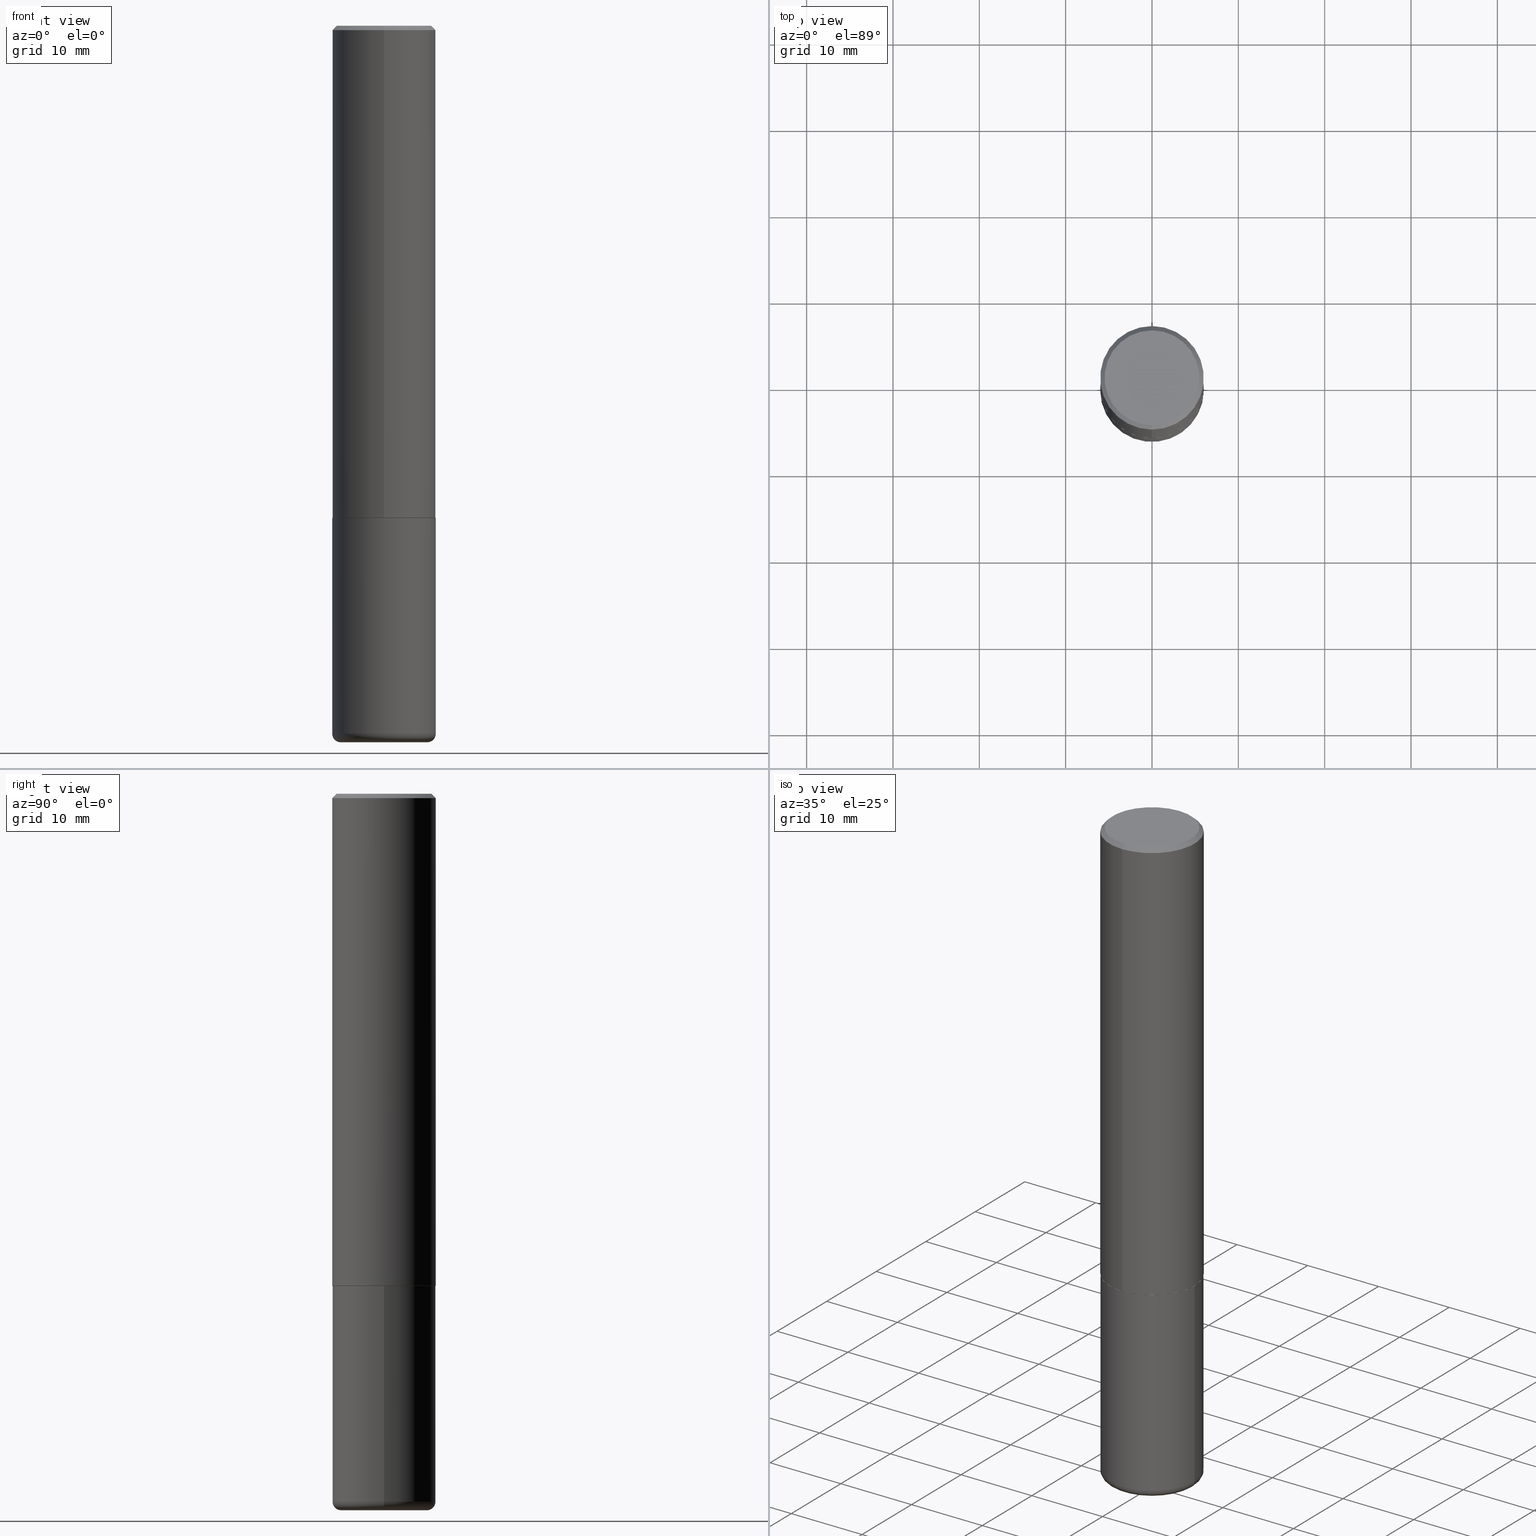
[diagram: canonical four-view strip — front | top / right | iso, engineering-drawing reading convention]
A machine part, canonical four-view strip (front | top / right | iso — engineering-drawing reading convention). The complete STEP part file that produces these views, byte-faithful:
ISO-10303-21;
HEADER;
FILE_DESCRIPTION (( 'STEP AP203' ),
    '1' );
FILE_NAME ('47165.STEP',
    '2024-03-06T00:37:50',
    ( '' ),
    ( '' ),
    'SwSTEP 2.0',
    'SolidWorks 2023',
    '' );
FILE_SCHEMA (( 'CONFIG_CONTROL_DESIGN' ));
ENDSEC;

DATA;
#1 = EDGE_CURVE ( 'NONE', #215, #292, #14, .T. ) ;
#2 = CARTESIAN_POINT ( 'NONE',  ( 5.487876547960065873E-29, -7.835233272497903917E-15, -2.244100000000000428 ) ) ;
#3 = CONICAL_SURFACE ( 'NONE', #312, 0.2361999999999999933, 0.7853981633974463916 ) ;
#4 = LINE ( 'NONE', #36, #342 ) ;
#5 = DIRECTION ( 'NONE',  ( -2.445468806185136877E-29, 3.491481338843145188E-15, 1.000000000000000000 ) ) ;
#6 = EDGE_LOOP ( 'NONE', ( #85, #385 ) ) ;
#7 = CARTESIAN_POINT ( 'NONE',  ( 0.1968000000000000027, -1.264579626115598374E-14, -3.228299999999999947 ) ) ;
#8 = PRODUCT ( '47165', '47165', '', ( #195 ) ) ;
#9 = FACE_OUTER_BOUND ( 'NONE', #144, .T. ) ;
#10 = APPROVAL ( #400, 'UNSPECIFIED' ) ;
#11 = ORIENTED_EDGE ( 'NONE', *, *, #122, .T. ) ;
#12 = EDGE_LOOP ( 'NONE', ( #347, #116, #345, #42 ) ) ;
#13 = CARTESIAN_POINT ( 'NONE',  ( 1.649375784469496525E-15, 0.2361999999999999378, -0.02000000000000091288 ) ) ;
#14 = LINE ( 'NONE', #302, #70 ) ;
#15 = CARTESIAN_POINT ( 'NONE',  ( 4.886397103869442398E-31, -6.989464944289237832E-17, -0.02000000000000009062 ) ) ;
#16 = AXIS2_PLACEMENT_3D ( 'NONE', #193, #225, #405 ) ;
#17 = ORGANIZATION ( 'UNSPECIFIED', 'UNSPECIFIED', '' ) ;
#18 = DIRECTION ( 'NONE',  ( 6.982962677686265922E-15, 1.000000000000000000, -3.487819265831411744E-15 ) ) ;
#19 = ORIENTED_EDGE ( 'NONE', *, *, #210, .T. ) ;
#20 = EDGE_CURVE ( 'NONE', #151, #363, #359, .T. ) ;
#21 = ORIENTED_EDGE ( 'NONE', *, *, #358, .F. ) ;
#22 = AXIS2_PLACEMENT_3D ( 'NONE', #30, #266, #100 ) ;
#23 = CARTESIAN_POINT ( 'NONE',  ( 7.178715118017931868E-45, -1.026837905226585320E-30, -2.938244667971532280E-16 ) ) ;
#24 = ORIENTED_EDGE ( 'NONE', *, *, #261, .T. ) ;
#25 = APPROVAL_ROLE ( '' ) ;
#26 = ADVANCED_BREP_SHAPE_REPRESENTATION ( '47165', ( #326, #200, #82 ), #274 ) ;
#27 = ORIENTED_EDGE ( 'NONE', *, *, #165, .F. ) ;
#28 = EDGE_CURVE ( 'NONE', #363, #151, #164, .T. ) ;
#29 = DIRECTION ( 'NONE',  ( -6.982962677686265922E-15, -1.000000000000000000, 3.494732472144603016E-15 ) ) ;
#30 = CARTESIAN_POINT ( 'NONE',  ( 0.000000000000000000, 0.000000000000000000, 0.000000000000000000 ) ) ;
#31 = AXIS2_PLACEMENT_3D ( 'NONE', #7, #281, #249 ) ;
#32 = ADVANCED_FACE ( 'NONE', ( #9 ), #182, .F. ) ;
#33 = DIRECTION ( 'NONE',  ( 1.000000000000000000, -6.982962677686261977E-15, 0.000000000000000000 ) ) ;
#34 = CONICAL_SURFACE ( 'NONE', #403, 0.2361999999999999933, 0.7853981633974463916 ) ;
#35 = CC_DESIGN_SECURITY_CLASSIFICATION ( #268, ( #333 ) ) ;
#36 = CARTESIAN_POINT ( 'NONE',  ( 1.671196514507810409E-15, 0.2351999999999921653, -2.244100000000000872 ) ) ;
#37 = EDGE_CURVE ( 'NONE', #138, #151, #50, .T. ) ;
#38 = FACE_OUTER_BOUND ( 'NONE', #410, .T. ) ;
#39 = DIRECTION ( 'NONE',  ( -1.000000000000000000, 7.105427357601014480E-15, 0.000000000000000000 ) ) ;
#40 = ORIENTED_EDGE ( 'NONE', *, *, #44, .T. ) ;
#41 = LOCAL_TIME ( 19, 37, 50.00000000000000000, #99 ) ;
#42 = ORIENTED_EDGE ( 'NONE', *, *, #28, .T. ) ;
#43 = DIRECTION ( 'NONE',  ( -6.982962677686265922E-15, -1.000000000000000000, 3.494732472144603410E-15 ) ) ;
#44 = EDGE_CURVE ( 'NONE', #292, #48, #120, .T. ) ;
#45 = PERSON ( 'UNSPECIFIED', 'UNSPECIFIED', 'UNSPECIFIED', ('UNSPECIFIED'), ('UNSPECIFIED'), ('UNSPECIFIED') ) ;
#46 =( LENGTH_UNIT ( ) NAMED_UNIT ( * ) SI_UNIT ( $, .METRE. ) );
#47 = ORIENTED_EDGE ( 'NONE', *, *, #37, .T. ) ;
#48 = VERTEX_POINT ( 'NONE', #275 ) ;
#49 = DATE_AND_TIME ( #336, #370 ) ;
#50 = LINE ( 'NONE', #185, #250 ) ;
#51 = AXIS2_PLACEMENT_3D ( 'NONE', #69, #241, #273 ) ;
#52 = ORIENTED_EDGE ( 'NONE', *, *, #261, .F. ) ;
#53 = AXIS2_PLACEMENT_3D ( 'NONE', #174, #243, #245 ) ;
#54 = PERSON_AND_ORGANIZATION ( #45, #17 ) ;
#55 = CARTESIAN_POINT ( 'NONE',  ( -0.2362000000000001321, -9.593247264321970832E-15, -3.228299999999999947 ) ) ;
#56 = EDGE_LOOP ( 'NONE', ( #19, #263 ) ) ;
#57 = EDGE_CURVE ( 'NONE', #138, #303, #328, .T. ) ;
#58 = CARTESIAN_POINT ( 'NONE',  ( 1.678301941865357380E-15, 0.2362000000000001321, -8.254558099205557624E-16 ) ) ;
#59 = CARTESIAN_POINT ( 'NONE',  ( 4.886397103869442398E-31, -6.989464944289237832E-17, -0.02000000000000009062 ) ) ;
#60 = PERSON_AND_ORGANIZATION ( #45, #17 ) ;
#61 = APPROVAL_PERSON_ORGANIZATION ( #60, #170, #25 ) ;
#62 = ADVANCED_FACE ( 'NONE', ( #84 ), #375, .T. ) ;
#63 = APPROVAL_STATUS ( 'not_yet_approved' ) ;
#64 = CARTESIAN_POINT ( 'NONE',  ( 0.2362000000000001321, -1.292092499065682533E-14, -3.228299999999999947 ) ) ;
#65 = VECTOR ( 'NONE', #262, 39.37007874015748143 ) ;
#66 = APPROVAL_DATE_TIME ( #355, #10 ) ;
#67 = PRODUCT_DEFINITION_SHAPE ( 'NONE', 'NONE',  #141 ) ;
#68 = APPROVAL_DATE_TIME ( #202, #291 ) ;
#69 = CARTESIAN_POINT ( 'NONE',  ( 5.480338671844748839E-29, -7.839034408267561952E-15, -2.243100000000000094 ) ) ;
#70 = VECTOR ( 'NONE', #5, 39.37007874015748143 ) ;
#71 = DIRECTION ( 'NONE',  ( 1.000000000000000000, -6.982962677686265922E-15, 0.000000000000000000 ) ) ;
#72 = LINE ( 'NONE', #73, #382 ) ;
#73 = CARTESIAN_POINT ( 'NONE',  ( 1.649375784469496525E-15, 0.2361999999999999378, -0.02000000000000091288 ) ) ;
#74 = DIRECTION ( 'NONE',  ( 1.000000000000000000, -6.982962677686268288E-15, 0.000000000000000000 ) ) ;
#75 = AXIS2_PLACEMENT_3D ( 'NONE', #114, #367, #344 ) ;
#76 = ORIENTED_EDGE ( 'NONE', *, *, #338, .T. ) ;
#77 = DIRECTION ( 'NONE',  ( 1.000000000000000000, -6.982962677686268288E-15, 0.000000000000000000 ) ) ;
#78 = COORDINATED_UNIVERSAL_TIME_OFFSET ( 5, 0, .BEHIND. ) ;
#79 = CARTESIAN_POINT ( 'NONE',  ( 7.894706947007477118E-29, -1.127154920618732880E-14, -3.228299999999999947 ) ) ;
#80 = ADVANCED_FACE ( 'NONE', ( #409 ), #357, .T. ) ;
#81 = CLOSED_SHELL ( 'NONE', ( #256, #354, #396, #96, #131, #319, #236, #265 ) ) ;
#82 = AXIS2_PLACEMENT_3D ( 'NONE', #152, #373, #285 ) ;
#83 = APPROVAL_ROLE ( '' ) ;
#84 = FACE_OUTER_BOUND ( 'NONE', #147, .T. ) ;
#85 = ORIENTED_EDGE ( 'NONE', *, *, #323, .F. ) ;
#86 = APPLICATION_PROTOCOL_DEFINITION ( 'international standard', 'config_control_design', 1994, #376 ) ;
#87 = CC_DESIGN_DATE_AND_TIME_ASSIGNMENT ( #366, #222, ( #141 ) ) ;
#88 = DIRECTION ( 'NONE',  ( -2.445468806185136597E-29, 3.491481338843145583E-15, 1.000000000000000000 ) ) ;
#89 = ORIENTED_EDGE ( 'NONE', *, *, #358, .T. ) ;
#90 = CLOSED_SHELL ( 'NONE', ( #62, #80, #32, #286, #379, #270 ) ) ;
#91 = DATE_TIME_ROLE ( 'classification_date' ) ;
#92 = CC_DESIGN_APPROVAL ( #170, ( #141 ) ) ;
#93 = CYLINDRICAL_SURFACE ( 'NONE', #206, 0.2362000000000001321 ) ;
#94 = VERTEX_POINT ( 'NONE', #320 ) ;
#95 = DIRECTION ( 'NONE',  ( -1.000000000000000000, 6.982962677686265922E-15, -4.876176775795935793E-29 ) ) ;
#96 = ADVANCED_FACE ( 'NONE', ( #156 ), #34, .T. ) ;
#97 = VECTOR ( 'NONE', #401, 39.37007874015748143 ) ;
#98 = CARTESIAN_POINT ( 'NONE',  ( 5.482781870396684000E-29, -7.842529140739704038E-15, -2.244100000000000428 ) ) ;
#99 = COORDINATED_UNIVERSAL_TIME_OFFSET ( 5, 0, .BEHIND. ) ;
#100 = DIRECTION ( 'NONE',  ( 1.000000000000000000, -6.982962677686266711E-15, 4.876176775795936353E-29 ) ) ;
#101 = EDGE_CURVE ( 'NONE', #157, #48, #161, .T. ) ;
#102 = DIRECTION ( 'NONE',  ( 2.438088387897960049E-29, -3.491481338843145188E-15, -1.000000000000000000 ) ) ;
#103 = DIRECTION ( 'NONE',  ( -6.982962677686265922E-15, -1.000000000000000000, 3.484499991918702719E-15 ) ) ;
#104 = CARTESIAN_POINT ( 'NONE',  ( 5.487876547960065873E-29, -7.835233272497903917E-15, -2.244100000000000428 ) ) ;
#105 = CARTESIAN_POINT ( 'NONE',  ( 5.482781870396684000E-29, -7.842529140739704038E-15, -2.244100000000000428 ) ) ;
#106 = CARTESIAN_POINT ( 'NONE',  ( 7.894706947007477118E-29, -1.127154920618732880E-14, -3.228299999999999947 ) ) ;
#107 = CARTESIAN_POINT ( 'NONE',  ( 5.487876547960065873E-29, -7.835233272497903917E-15, -2.244100000000000428 ) ) ;
#108 = CIRCLE ( 'NONE', #126, 0.2352000000000000202 ) ;
#109 = LOCAL_TIME ( 19, 37, 50.00000000000000000, #322 ) ;
#110 = FACE_OUTER_BOUND ( 'NONE', #371, .T. ) ;
#111 = APPLICATION_CONTEXT ( 'configuration controlled 3d designs of mechanical parts and assemblies' ) ;
#112 = ORIENTED_EDGE ( 'NONE', *, *, #327, .F. ) ;
#113 = PERSON_AND_ORGANIZATION_ROLE ( 'creator' ) ;
#114 = CARTESIAN_POINT ( 'NONE',  ( 5.482781870396684000E-29, -7.842529140739704038E-15, -2.244100000000000428 ) ) ;
#115 = DESIGN_CONTEXT ( 'detailed design', #111, 'design' ) ;
#116 = ORIENTED_EDGE ( 'NONE', *, *, #210, .F. ) ;
#117 = APPROVAL_STATUS ( 'not_yet_approved' ) ;
#118 = DIRECTION ( 'NONE',  ( -2.443198551934710321E-29, 3.494732472144603410E-15, 1.000000000000000000 ) ) ;
#119 = VERTEX_POINT ( 'NONE', #287 ) ;
#120 = CIRCLE ( 'NONE', #220, 0.2362000000000000210 ) ;
#121 = ORIENTED_EDGE ( 'NONE', *, *, #101, .T. ) ;
#122 = EDGE_CURVE ( 'NONE', #316, #138, #153, .T. ) ;
#123 = APPLICATION_PROTOCOL_DEFINITION ( 'international standard', 'config_control_design', 1994, #111 ) ;
#124 = DIRECTION ( 'NONE',  ( -2.443198551934710321E-29, 3.494732472144603410E-15, 1.000000000000000000 ) ) ;
#125 = VERTEX_POINT ( 'NONE', #378 ) ;
#126 = AXIS2_PLACEMENT_3D ( 'NONE', #389, #143, #103 ) ;
#127 = PERSON_AND_ORGANIZATION ( #45, #17 ) ;
#128 = AXIS2_PLACEMENT_3D ( 'NONE', #279, #298, #43 ) ;
#129 = DIRECTION ( 'NONE',  ( 6.982962677686265922E-15, 1.000000000000000000, -3.494732472144603016E-15 ) ) ;
#130 = CALENDAR_DATE ( 2024, 5, 3 ) ;
#131 = ADVANCED_FACE ( 'NONE', ( #223 ), #93, .T. ) ;
#132 = PLANE ( 'NONE',  #299 ) ;
#133 = CIRCLE ( 'NONE', #267, 0.2361999999999999655 ) ;
#134 = CARTESIAN_POINT ( 'NONE',  ( 1.656106381740712274E-29, -2.048112544989781332E-14, -3.267700000000000937 ) ) ;
#135 = ORIENTED_EDGE ( 'NONE', *, *, #391, .F. ) ;
#136 = LOCAL_TIME ( 19, 37, 50.00000000000000000, #234 ) ;
#137 = CARTESIAN_POINT ( 'NONE',  ( 5.482781870396684000E-29, -7.842529140739704038E-15, -2.244100000000000428 ) ) ;
#138 = VERTEX_POINT ( 'NONE', #231 ) ;
#139 = CARTESIAN_POINT ( 'NONE',  ( -1.620449627073635079E-15, -0.2362000000000000766, -0.01999999999999926489 ) ) ;
#140 = DIRECTION ( 'NONE',  ( -2.445468806185136597E-29, 3.491481338843145583E-15, 1.000000000000000000 ) ) ;
#141 = PRODUCT_DEFINITION ( 'UNKNOWN', '', #333, #115 ) ;
#142 = CIRCLE ( 'NONE', #53, 0.1968000000000000027 ) ;
#143 = DIRECTION ( 'NONE',  ( -2.443198551934710321E-29, 3.494732472144603410E-15, 1.000000000000000000 ) ) ;
#144 = EDGE_LOOP ( 'NONE', ( #89, #40 ) ) ;
#145 = CARTESIAN_POINT ( 'NONE',  ( -0.2362000000000000766, -7.875089297477259967E-15, -2.244100000000000428 ) ) ;
#146 = DIRECTION ( 'NONE',  ( -2.443198551934710321E-29, 3.494732472144603016E-15, 1.000000000000000000 ) ) ;
#147 = EDGE_LOOP ( 'NONE', ( #335, #148, #21, #307 ) ) ;
#148 = ORIENTED_EDGE ( 'NONE', *, *, #1, .T. ) ;
#149 = DIRECTION ( 'NONE',  ( 7.105427357601001859E-15, 1.000000000000000000, -3.491481338843145583E-15 ) ) ;
#150 = DIRECTION ( 'NONE',  ( 2.438088387897960049E-29, -3.491481338843145188E-15, -1.000000000000000000 ) ) ;
#151 = VERTEX_POINT ( 'NONE', #351 ) ;
#152 = CARTESIAN_POINT ( 'NONE',  ( 0.000000000000000000, 0.000000000000000000, 0.000000000000000000 ) ) ;
#153 = LINE ( 'NONE', #374, #97 ) ;
#154 = EDGE_LOOP ( 'NONE', ( #27, #283, #406, #197 ) ) ;
#155 = PERSON_AND_ORGANIZATION ( #45, #17 ) ;
#156 = FACE_OUTER_BOUND ( 'NONE', #12, .T. ) ;
#157 = VERTEX_POINT ( 'NONE', #64 ) ;
#158 = CC_DESIGN_PERSON_AND_ORGANIZATION_ASSIGNMENT ( #155, #407, ( #8 ) ) ;
#159 = AXIS2_PLACEMENT_3D ( 'NONE', #209, #387, #309 ) ;
#160 = DIRECTION ( 'NONE',  ( -2.443198551934710321E-29, 3.494732472144603016E-15, 1.000000000000000000 ) ) ;
#161 = LINE ( 'NONE', #255, #65 ) ;
#162 = EDGE_LOOP ( 'NONE', ( #226, #304, #121, #248 ) ) ;
#163 = CARTESIAN_POINT ( 'NONE',  ( 7.991058417971172834E-29, -1.140911357093774960E-14, -3.267700000000000937 ) ) ;
#164 = CIRCLE ( 'NONE', #289, 0.2361999999999999933 ) ;
#165 = EDGE_CURVE ( 'NONE', #119, #125, #240, .T. ) ;
#166 = CIRCLE ( 'NONE', #418, 0.03940000000000033753 ) ;
#167 = FACE_OUTER_BOUND ( 'NONE', #188, .T. ) ;
#168 = PERSON_AND_ORGANIZATION_ROLE ( 'creator' ) ;
#169 = PLANE ( 'NONE',  #356 ) ;
#170 = APPROVAL ( #117, 'UNSPECIFIED' ) ;
#171 = ORIENTED_EDGE ( 'NONE', *, *, #411, .F. ) ;
#172 = PERSON_AND_ORGANIZATION ( #45, #17 ) ;
#173 = AXIS2_PLACEMENT_3D ( 'NONE', #408, #124, #341 ) ;
#174 = CARTESIAN_POINT ( 'NONE',  ( 7.991058417971172834E-29, -1.140911357093774960E-14, -3.267700000000000937 ) ) ;
#175 = CYLINDRICAL_SURFACE ( 'NONE', #128, 0.2362000000000001321 ) ;
#176 = EDGE_CURVE ( 'NONE', #398, #316, #201, .T. ) ;
#177 = CARTESIAN_POINT ( 'NONE',  ( 4.886397103869442398E-31, -6.989464944289237832E-17, -0.02000000000000009062 ) ) ;
#178 = VECTOR ( 'NONE', #360, 39.37007874015748143 ) ;
#179 = VECTOR ( 'NONE', #160, 39.37007874015748143 ) ;
#180 = EDGE_LOOP ( 'NONE', ( #24, #191, #296, #171 ) ) ;
#181 = DIRECTION ( 'NONE',  ( 5.024295867788490741E-15, 0.7071067811866103003, 0.7071067811864847341 ) ) ;
#182 = PLANE ( 'NONE',  #228 ) ;
#183 = CC_DESIGN_PERSON_AND_ORGANIZATION_ASSIGNMENT ( #294, #325, ( #268 ) ) ;
#184 = EDGE_LOOP ( 'NONE', ( #343, #216, #11, #290 ) ) ;
#185 = CARTESIAN_POINT ( 'NONE',  ( -1.649375784469496920E-15, -0.2362000000000001321, 8.254558099205557624E-16 ) ) ;
#186 = AXIS2_PLACEMENT_3D ( 'NONE', #329, #212, #71 ) ;
#187 = LOCAL_TIME ( 19, 37, 50.00000000000000000, #315 ) ;
#188 = EDGE_LOOP ( 'NONE', ( #258, #284, #259, #196 ) ) ;
#189 = ORIENTED_EDGE ( 'NONE', *, *, #57, .T. ) ;
#190 = PRODUCT_RELATED_PRODUCT_CATEGORY ( 'detail', '', ( #8 ) ) ;
#191 = ORIENTED_EDGE ( 'NONE', *, *, #391, .T. ) ;
#192 = DIRECTION ( 'NONE',  ( -6.982962677686265922E-15, -1.000000000000000000, 3.469747663417773058E-15 ) ) ;
#193 = CARTESIAN_POINT ( 'NONE',  ( 0.000000000000000000, 0.000000000000000000, 0.000000000000000000 ) ) ;
#194 = AXIS2_PLACEMENT_3D ( 'NONE', #214, #280, #192 ) ;
#195 = MECHANICAL_CONTEXT ( 'NONE', #376, 'mechanical' ) ;
#196 = ORIENTED_EDGE ( 'NONE', *, *, #122, .F. ) ;
#197 = ORIENTED_EDGE ( 'NONE', *, *, #383, .F. ) ;
#198 = CARTESIAN_POINT ( 'NONE',  ( 1.509716530915772690E-15, 0.2162000000000002808, -9.024733938762408486E-16 ) ) ;
#199 = CC_DESIGN_PERSON_AND_ORGANIZATION_ASSIGNMENT ( #350, #168, ( #333 ) ) ;
#200 = MANIFOLD_SOLID_BREP ( 'Body-Move/Copy2[2]', #81 ) ;
#201 = CIRCLE ( 'NONE', #75, 0.2352000000000000202 ) ;
#202 = DATE_AND_TIME ( #293, #41 ) ;
#203 = APPROVAL_PERSON_ORGANIZATION ( #127, #291, #205 ) ;
#204 = EDGE_CURVE ( 'NONE', #303, #363, #219, .T. ) ;
#205 = APPROVAL_ROLE ( '' ) ;
#206 = AXIS2_PLACEMENT_3D ( 'NONE', #346, #118, #399 ) ;
#207 = CARTESIAN_POINT ( 'NONE',  ( -0.1968000000000000027, -9.873201102211451027E-15, -3.228299999999999947 ) ) ;
#208 = DIRECTION ( 'NONE',  ( -6.982962677686265922E-15, -1.000000000000000000, 3.484499991918702719E-15 ) ) ;
#209 = CARTESIAN_POINT ( 'NONE',  ( 4.886397103869442398E-31, -6.989464944289237832E-17, -0.02000000000000009062 ) ) ;
#210 = EDGE_CURVE ( 'NONE', #125, #119, #381, .T. ) ;
#211 = DIRECTION ( 'NONE',  ( -2.445468806185136597E-29, 3.491481338843145583E-15, 1.000000000000000000 ) ) ;
#212 = DIRECTION ( 'NONE',  ( -2.445468806185136597E-29, 3.491481338843145583E-15, 1.000000000000000000 ) ) ;
#213 = AXIS2_PLACEMENT_3D ( 'NONE', #163, #416, #33 ) ;
#214 = CARTESIAN_POINT ( 'NONE',  ( 5.480338671844748839E-29, -7.839034408267561952E-15, -2.243100000000000094 ) ) ;
#215 = VERTEX_POINT ( 'NONE', #55 ) ;
#216 = ORIENTED_EDGE ( 'NONE', *, *, #176, .T. ) ;
#217 = CARTESIAN_POINT ( 'NONE',  ( -0.1968000000000000027, -9.802006365641918959E-15, -3.267700000000000937 ) ) ;
#218 =( CONVERSION_BASED_UNIT ( 'INCH', #254 ) LENGTH_UNIT ( ) NAMED_UNIT ( #253 ) );
#219 = LINE ( 'NONE', #58, #179 ) ;
#220 = AXIS2_PLACEMENT_3D ( 'NONE', #107, #246, #74 ) ;
#221 = AXIS2_PLACEMENT_3D ( 'NONE', #297, #211, #362 ) ;
#222 = DATE_TIME_ROLE ( 'creation_date' ) ;
#223 = FACE_OUTER_BOUND ( 'NONE', #244, .T. ) ;
#224 = ORIENTED_EDGE ( 'NONE', *, *, #20, .F. ) ;
#225 = DIRECTION ( 'NONE',  ( -2.445468806185136597E-29, 3.491481338843145583E-15, 1.000000000000000000 ) ) ;
#226 = ORIENTED_EDGE ( 'NONE', *, *, #1, .F. ) ;
#227 =( NAMED_UNIT ( * ) PLANE_ANGLE_UNIT ( ) SI_UNIT ( $, .RADIAN. ) );
#228 = AXIS2_PLACEMENT_3D ( 'NONE', #104, #150, #393 ) ;
#229 = AXIS2_PLACEMENT_3D ( 'NONE', #2, #140, #77 ) ;
#230 = CALENDAR_DATE ( 2024, 5, 3 ) ;
#231 = CARTESIAN_POINT ( 'NONE',  ( -1.649375784469443080E-15, -0.2362000000000081257, -2.243099999999999206 ) ) ;
#232 = DATE_AND_TIME ( #130, #136 ) ;
#233 = FACE_OUTER_BOUND ( 'NONE', #56, .T. ) ;
#234 = COORDINATED_UNIVERSAL_TIME_OFFSET ( 5, 0, .BEHIND. ) ;
#235 = AXIS2_PLACEMENT_3D ( 'NONE', #23, #252, #369 ) ;
#236 = ADVANCED_FACE ( 'NONE', ( #260 ), #415, .F. ) ;
#237 = APPROVAL_PERSON_ORGANIZATION ( #54, #10, #83 ) ;
#238 = DIRECTION ( 'NONE',  ( -2.443198551934710321E-29, 3.494732472144603410E-15, 1.000000000000000000 ) ) ;
#239 = DIRECTION ( 'NONE',  ( -6.982962677686265922E-15, -1.000000000000000000, 3.484499991918702719E-15 ) ) ;
#240 = CIRCLE ( 'NONE', #235, 0.2162000000000002808 ) ;
#241 = DIRECTION ( 'NONE',  ( -2.443198551934710321E-29, 3.494732472144603410E-15, 1.000000000000000000 ) ) ;
#242 = ORIENTED_EDGE ( 'NONE', *, *, #365, .F. ) ;
#243 = DIRECTION ( 'NONE',  ( -2.445468806185136597E-29, 3.491481338843145583E-15, 1.000000000000000000 ) ) ;
#244 = EDGE_LOOP ( 'NONE', ( #288, #76, #47, #321 ) ) ;
#245 = DIRECTION ( 'NONE',  ( 1.000000000000000000, -6.982962677686261977E-15, 0.000000000000000000 ) ) ;
#246 = DIRECTION ( 'NONE',  ( -2.445468806185136597E-29, 3.491481338843145583E-15, 1.000000000000000000 ) ) ;
#247 = CC_DESIGN_DATE_AND_TIME_ASSIGNMENT ( #232, #91, ( #268 ) ) ;
#248 = ORIENTED_EDGE ( 'NONE', *, *, #44, .F. ) ;
#249 = DIRECTION ( 'NONE',  ( 1.000000000000000000, -6.982962677686268288E-15, 0.000000000000000000 ) ) ;
#250 = VECTOR ( 'NONE', #146, 39.37007874015748143 ) ;
#251 = CALENDAR_DATE ( 2024, 5, 3 ) ;
#252 = DIRECTION ( 'NONE',  ( -2.443198551934710321E-29, 3.494732472144603410E-15, 1.000000000000000000 ) ) ;
#253 = DIMENSIONAL_EXPONENTS ( 1.000000000000000000, 0.000000000000000000, 0.000000000000000000, 0.000000000000000000, 0.000000000000000000, 0.000000000000000000, 0.000000000000000000 ) ;
#254 = LENGTH_MEASURE_WITH_UNIT ( LENGTH_MEASURE( 0.02539999999999999897 ), #46 );
#255 = CARTESIAN_POINT ( 'NONE',  ( 0.2361999999999999933, -1.649375784469496131E-15, 1.151752954443000088E-29 ) ) ;
#256 = ADVANCED_FACE ( 'NONE', ( #167 ), #417, .T. ) ;
#257 = CC_DESIGN_APPROVAL ( #291, ( #268 ) ) ;
#258 = ORIENTED_EDGE ( 'NONE', *, *, #323, .T. ) ;
#259 = ORIENTED_EDGE ( 'NONE', *, *, #57, .F. ) ;
#260 = FACE_OUTER_BOUND ( 'NONE', #6, .T. ) ;
#261 = EDGE_CURVE ( 'NONE', #94, #390, #332, .T. ) ;
#262 = DIRECTION ( 'NONE',  ( -2.445468806185136877E-29, 3.491481338843145188E-15, 1.000000000000000000 ) ) ;
#263 = ORIENTED_EDGE ( 'NONE', *, *, #165, .T. ) ;
#264 = FACE_OUTER_BOUND ( 'NONE', #352, .T. ) ;
#265 = ADVANCED_FACE ( 'NONE', ( #233 ), #132, .F. ) ;
#266 = DIRECTION ( 'NONE',  ( -2.445468806185136597E-29, 3.491481338843145583E-15, 1.000000000000000000 ) ) ;
#267 = AXIS2_PLACEMENT_3D ( 'NONE', #106, #276, #361 ) ;
#268 = SECURITY_CLASSIFICATION ( '', '', #414 ) ;
#269 = DIRECTION ( 'NONE',  ( 2.443198551934710321E-29, -3.494732472144603016E-15, -1.000000000000000000 ) ) ;
#270 = ADVANCED_FACE ( 'NONE', ( #264 ), #169, .T. ) ;
#271 = CARTESIAN_POINT ( 'NONE',  ( 1.678301941865385582E-15, 0.2361999999999924160, -2.243100000000000982 ) ) ;
#272 = CONICAL_SURFACE ( 'NONE', #282, 0.2352000000000000202, 0.7853981633975336552 ) ;
#273 = DIRECTION ( 'NONE',  ( -6.982962677686265922E-15, -1.000000000000000000, 3.469747663417773058E-15 ) ) ;
#274 =( GEOMETRIC_REPRESENTATION_CONTEXT ( 3 ) GLOBAL_UNCERTAINTY_ASSIGNED_CONTEXT ( ( #324 ) ) GLOBAL_UNIT_ASSIGNED_CONTEXT ( ( #218, #227, #404 ) ) REPRESENTATION_CONTEXT ( 'NONE', 'WORKASPACE' ) );
#275 = CARTESIAN_POINT ( 'NONE',  ( 0.2362000000000000210, -9.484609056967400443E-15, -2.244100000000000428 ) ) ;
#276 = DIRECTION ( 'NONE',  ( -2.445468806185136597E-29, 3.491481338843145583E-15, 1.000000000000000000 ) ) ;
#277 = DIRECTION ( 'NONE',  ( -2.443198551934710321E-29, 3.494732472144603410E-15, 1.000000000000000000 ) ) ;
#278 = ORIENTED_EDGE ( 'NONE', *, *, #365, .T. ) ;
#279 = CARTESIAN_POINT ( 'NONE',  ( 0.000000000000000000, 0.000000000000000000, 0.000000000000000000 ) ) ;
#280 = DIRECTION ( 'NONE',  ( -2.443198551934710321E-29, 3.494732472144603410E-15, 1.000000000000000000 ) ) ;
#281 = DIRECTION ( 'NONE',  ( -6.982962677686266711E-15, -1.000000000000000000, 3.491481338843145583E-15 ) ) ;
#282 = AXIS2_PLACEMENT_3D ( 'NONE', #105, #334, #208 ) ;
#283 = ORIENTED_EDGE ( 'NONE', *, *, #314, .T. ) ;
#284 = ORIENTED_EDGE ( 'NONE', *, *, #402, .T. ) ;
#285 = DIRECTION ( 'NONE',  ( 1.000000000000000000, 0.000000000000000000, 0.000000000000000000 ) ) ;
#286 = ADVANCED_FACE ( 'NONE', ( #384 ), #353, .T. ) ;
#287 = CARTESIAN_POINT ( 'NONE',  ( -1.551844647095920733E-15, -0.2162000000000002808, 4.617366936805109079E-16 ) ) ;
#288 = ORIENTED_EDGE ( 'NONE', *, *, #204, .F. ) ;
#289 = AXIS2_PLACEMENT_3D ( 'NONE', #15, #277, #337 ) ;
#290 = ORIENTED_EDGE ( 'NONE', *, *, #338, .F. ) ;
#291 = APPROVAL ( #63, 'UNSPECIFIED' ) ;
#292 = VERTEX_POINT ( 'NONE', #145 ) ;
#293 = CALENDAR_DATE ( 2024, 5, 3 ) ;
#294 = PERSON_AND_ORGANIZATION ( #45, #17 ) ;
#295 = CIRCLE ( 'NONE', #31, 0.03940000000000033753 ) ;
#296 = ORIENTED_EDGE ( 'NONE', *, *, #301, .F. ) ;
#297 = CARTESIAN_POINT ( 'NONE',  ( 7.894706947007477118E-29, -1.127154920618732880E-14, -3.228299999999999947 ) ) ;
#298 = DIRECTION ( 'NONE',  ( -2.443198551934710321E-29, 3.494732472144603410E-15, 1.000000000000000000 ) ) ;
#299 = AXIS2_PLACEMENT_3D ( 'NONE', #198, #269, #129 ) ;
#300 = DIRECTION ( 'NONE',  ( 6.982962677686265922E-15, 1.000000000000000000, -3.487819265831411744E-15 ) ) ;
#301 = EDGE_CURVE ( 'NONE', #157, #215, #133, .T. ) ;
#302 = CARTESIAN_POINT ( 'NONE',  ( -0.2361999999999999933, 1.678301941865356591E-15, -1.161852468318208757E-29 ) ) ;
#303 = VERTEX_POINT ( 'NONE', #271 ) ;
#304 = ORIENTED_EDGE ( 'NONE', *, *, #327, .T. ) ;
#305 = CARTESIAN_POINT ( 'NONE',  ( 1.674749228186611702E-15, 0.2351999999999921653, -2.244100000000000872 ) ) ;
#306 = ORIENTED_EDGE ( 'NONE', *, *, #37, .F. ) ;
#307 = ORIENTED_EDGE ( 'NONE', *, *, #101, .F. ) ;
#308 = CARTESIAN_POINT ( 'NONE',  ( -1.642392821791755093E-15, -0.2352000000000078750, -2.244099999999999540 ) ) ;
#309 = DIRECTION ( 'NONE',  ( -6.982962677686265922E-15, -1.000000000000000000, 3.487819265831411744E-15 ) ) ;
#310 = PERSON_AND_ORGANIZATION ( #45, #17 ) ;
#311 = AXIS2_PLACEMENT_3D ( 'NONE', #137, #238, #239 ) ;
#312 = AXIS2_PLACEMENT_3D ( 'NONE', #177, #397, #300 ) ;
#313 = ORIENTED_EDGE ( 'NONE', *, *, #411, .T. ) ;
#314 = EDGE_CURVE ( 'NONE', #119, #151, #386, .T. ) ;
#315 = COORDINATED_UNIVERSAL_TIME_OFFSET ( 5, 0, .BEHIND. ) ;
#316 = VERTEX_POINT ( 'NONE', #308 ) ;
#317 = DIRECTION ( 'NONE',  ( 2.443198551934710321E-29, -3.494732472144603410E-15, -1.000000000000000000 ) ) ;
#318 = AXIS2_PLACEMENT_3D ( 'NONE', #98, #412, #29 ) ;
#319 = ADVANCED_FACE ( 'NONE', ( #392 ), #272, .T. ) ;
#320 = CARTESIAN_POINT ( 'NONE',  ( 0.1968000000000000027, -1.278336062590640454E-14, -3.267700000000000937 ) ) ;
#321 = ORIENTED_EDGE ( 'NONE', *, *, #28, .F. ) ;
#322 = COORDINATED_UNIVERSAL_TIME_OFFSET ( 5, 0, .BEHIND. ) ;
#323 = EDGE_CURVE ( 'NONE', #316, #398, #108, .T. ) ;
#324 = UNCERTAINTY_MEASURE_WITH_UNIT (LENGTH_MEASURE( 1.000000000000000082E-05 ), #218, 'distance_accuracy_value', 'NONE');
#325 = PERSON_AND_ORGANIZATION_ROLE ( 'classification_officer' ) ;
#326 = MANIFOLD_SOLID_BREP ( 'Body-Move/Copy2[1]', #90 ) ;
#327 = EDGE_CURVE ( 'NONE', #215, #157, #349, .T. ) ;
#328 = CIRCLE ( 'NONE', #194, 0.2362000000000002709 ) ;
#329 = CARTESIAN_POINT ( 'NONE',  ( 7.894706947007477118E-29, -1.127154920618732880E-14, -3.228299999999999947 ) ) ;
#330 = CC_DESIGN_PERSON_AND_ORGANIZATION_ASSIGNMENT ( #310, #113, ( #141 ) ) ;
#331 = DIRECTION ( 'NONE',  ( 4.937700262164537787E-15, 0.7071067811865436870, -0.7071067811865513475 ) ) ;
#332 = CIRCLE ( 'NONE', #213, 0.1968000000000000027 ) ;
#333 = PRODUCT_DEFINITION_FORMATION_WITH_SPECIFIED_SOURCE ( 'ANY', '', #8, .NOT_KNOWN. ) ;
#334 = DIRECTION ( 'NONE',  ( -2.443198551934710321E-29, 3.494732472144603410E-15, 1.000000000000000000 ) ) ;
#335 = ORIENTED_EDGE ( 'NONE', *, *, #301, .T. ) ;
#336 = CALENDAR_DATE ( 2024, 5, 3 ) ;
#337 = DIRECTION ( 'NONE',  ( -6.982962677686265922E-15, -1.000000000000000000, 3.487819265831411744E-15 ) ) ;
#338 = EDGE_CURVE ( 'NONE', #303, #138, #413, .T. ) ;
#339 = APPROVAL_DATE_TIME ( #49, #170 ) ;
#340 = CIRCLE ( 'NONE', #229, 0.2362000000000000210 ) ;
#341 = DIRECTION ( 'NONE',  ( -6.982962677686265922E-15, -1.000000000000000000, 3.494732472144603410E-15 ) ) ;
#342 = VECTOR ( 'NONE', #181, 39.37007874015748143 ) ;
#343 = ORIENTED_EDGE ( 'NONE', *, *, #402, .F. ) ;
#344 = DIRECTION ( 'NONE',  ( -6.982962677686265922E-15, -1.000000000000000000, 3.484499991918702719E-15 ) ) ;
#345 = ORIENTED_EDGE ( 'NONE', *, *, #383, .T. ) ;
#346 = CARTESIAN_POINT ( 'NONE',  ( 0.000000000000000000, 0.000000000000000000, 0.000000000000000000 ) ) ;
#347 = ORIENTED_EDGE ( 'NONE', *, *, #314, .F. ) ;
#348 = DIRECTION ( 'NONE',  ( 1.000000000000000000, -6.982962677686262766E-15, 4.883557194083112340E-29 ) ) ;
#349 = CIRCLE ( 'NONE', #186, 0.2361999999999999655 ) ;
#350 = PERSON_AND_ORGANIZATION ( #45, #17 ) ;
#351 = CARTESIAN_POINT ( 'NONE',  ( -1.620449627073635079E-15, -0.2362000000000000766, -0.01999999999999926489 ) ) ;
#352 = EDGE_LOOP ( 'NONE', ( #52, #242 ) ) ;
#353 = CYLINDRICAL_SURFACE ( 'NONE', #22, 0.2361999999999999933 ) ;
#354 = ADVANCED_FACE ( 'NONE', ( #38 ), #175, .T. ) ;
#355 = DATE_AND_TIME ( #230, #109 ) ;
#356 = AXIS2_PLACEMENT_3D ( 'NONE', #134, #102, #95 ) ;
#357 = TOROIDAL_SURFACE ( 'NONE', #368, 0.1968000000000000027, 0.03940000000000031671 ) ;
#358 = EDGE_CURVE ( 'NONE', #48, #292, #340, .T. ) ;
#359 = CIRCLE ( 'NONE', #159, 0.2361999999999999933 ) ;
#360 = DIRECTION ( 'NONE',  ( -4.851104656540954020E-15, -0.7071067811865485719, -0.7071067811865464625 ) ) ;
#361 = DIRECTION ( 'NONE',  ( 1.000000000000000000, -6.982962677686265922E-15, 0.000000000000000000 ) ) ;
#362 = DIRECTION ( 'NONE',  ( 1.000000000000000000, -6.982962677686262766E-15, 4.883557194083112340E-29 ) ) ;
#363 = VERTEX_POINT ( 'NONE', #13 ) ;
#364 = CC_DESIGN_APPROVAL ( #10, ( #333 ) ) ;
#365 = EDGE_CURVE ( 'NONE', #390, #94, #142, .T. ) ;
#366 = DATE_AND_TIME ( #251, #187 ) ;
#367 = DIRECTION ( 'NONE',  ( -2.443198551934710321E-29, 3.494732472144603410E-15, 1.000000000000000000 ) ) ;
#368 = AXIS2_PLACEMENT_3D ( 'NONE', #79, #88, #348 ) ;
#369 = DIRECTION ( 'NONE',  ( -6.982962677686265922E-15, -1.000000000000000000, 3.494732472144603410E-15 ) ) ;
#370 = LOCAL_TIME ( 19, 37, 50.00000000000000000, #78 ) ;
#371 = EDGE_LOOP ( 'NONE', ( #135, #278, #313, #112 ) ) ;
#372 = CC_DESIGN_PERSON_AND_ORGANIZATION_ASSIGNMENT ( #172, #380, ( #333 ) ) ;
#373 = DIRECTION ( 'NONE',  ( 0.000000000000000000, 0.000000000000000000, 1.000000000000000000 ) ) ;
#374 = CARTESIAN_POINT ( 'NONE',  ( -1.642392821791755093E-15, -0.2352000000000078750, -2.244099999999999540 ) ) ;
#375 = CYLINDRICAL_SURFACE ( 'NONE', #16, 0.2361999999999999933 ) ;
#376 = APPLICATION_CONTEXT ( 'configuration controlled 3d designs of mechanical parts and assemblies' ) ;
#377 = SHAPE_DEFINITION_REPRESENTATION ( #67, #26 ) ;
#378 = CARTESIAN_POINT ( 'NONE',  ( 1.579546157692634608E-15, 0.2162000000000002808, -1.049385627274817561E-15 ) ) ;
#379 = ADVANCED_FACE ( 'NONE', ( #110 ), #388, .T. ) ;
#380 = PERSON_AND_ORGANIZATION_ROLE ( 'design_supplier' ) ;
#381 = CIRCLE ( 'NONE', #173, 0.2162000000000002808 ) ;
#382 = VECTOR ( 'NONE', #331, 39.37007874015748143 ) ;
#383 = EDGE_CURVE ( 'NONE', #125, #363, #72, .T. ) ;
#384 = FACE_OUTER_BOUND ( 'NONE', #162, .T. ) ;
#385 = ORIENTED_EDGE ( 'NONE', *, *, #176, .F. ) ;
#386 = LINE ( 'NONE', #139, #178 ) ;
#387 = DIRECTION ( 'NONE',  ( -2.443198551934710321E-29, 3.494732472144603410E-15, 1.000000000000000000 ) ) ;
#388 = TOROIDAL_SURFACE ( 'NONE', #221, 0.1968000000000000027, 0.03940000000000031671 ) ;
#389 = CARTESIAN_POINT ( 'NONE',  ( 5.482781870396684000E-29, -7.842529140739704038E-15, -2.244100000000000428 ) ) ;
#390 = VERTEX_POINT ( 'NONE', #217 ) ;
#391 = EDGE_CURVE ( 'NONE', #390, #215, #166, .T. ) ;
#392 = FACE_OUTER_BOUND ( 'NONE', #184, .T. ) ;
#393 = DIRECTION ( 'NONE',  ( -1.000000000000000000, 6.982962677686265922E-15, -4.876176775795935793E-29 ) ) ;
#394 = ORIENTED_EDGE ( 'NONE', *, *, #204, .T. ) ;
#395 = FACE_OUTER_BOUND ( 'NONE', #154, .T. ) ;
#396 = ADVANCED_FACE ( 'NONE', ( #395 ), #3, .T. ) ;
#397 = DIRECTION ( 'NONE',  ( 2.443198551934710321E-29, -3.494732472144603410E-15, -1.000000000000000000 ) ) ;
#398 = VERTEX_POINT ( 'NONE', #305 ) ;
#399 = DIRECTION ( 'NONE',  ( -6.982962677686265922E-15, -1.000000000000000000, 3.494732472144603410E-15 ) ) ;
#400 = APPROVAL_STATUS ( 'not_yet_approved' ) ;
#401 = DIRECTION ( 'NONE',  ( -4.937700262164969294E-15, -0.7071067811866054154, 0.7071067811864896191 ) ) ;
#402 = EDGE_CURVE ( 'NONE', #398, #303, #4, .T. ) ;
#403 = AXIS2_PLACEMENT_3D ( 'NONE', #59, #317, #18 ) ;
#404 =( NAMED_UNIT ( * ) SI_UNIT ( $, .STERADIAN. ) SOLID_ANGLE_UNIT ( ) );
#405 = DIRECTION ( 'NONE',  ( 1.000000000000000000, -6.982962677686266711E-15, 4.876176775795936353E-29 ) ) ;
#406 = ORIENTED_EDGE ( 'NONE', *, *, #20, .T. ) ;
#407 = PERSON_AND_ORGANIZATION_ROLE ( 'design_owner' ) ;
#408 = CARTESIAN_POINT ( 'NONE',  ( 7.178715118017931868E-45, -1.026837905226585320E-30, -2.938244667971532280E-16 ) ) ;
#409 = FACE_OUTER_BOUND ( 'NONE', #180, .T. ) ;
#410 = EDGE_LOOP ( 'NONE', ( #189, #394, #224, #306 ) ) ;
#411 = EDGE_CURVE ( 'NONE', #94, #157, #295, .T. ) ;
#412 = DIRECTION ( 'NONE',  ( -2.443198551934710321E-29, 3.494732472144603016E-15, 1.000000000000000000 ) ) ;
#413 = CIRCLE ( 'NONE', #51, 0.2362000000000002709 ) ;
#414 = SECURITY_CLASSIFICATION_LEVEL ( 'unclassified' ) ;
#415 = PLANE ( 'NONE',  #318 ) ;
#416 = DIRECTION ( 'NONE',  ( -2.445468806185136597E-29, 3.491481338843145583E-15, 1.000000000000000000 ) ) ;
#417 = CONICAL_SURFACE ( 'NONE', #311, 0.2352000000000000202, 0.7853981633975336552 ) ;
#418 = AXIS2_PLACEMENT_3D ( 'NONE', #207, #149, #39 ) ;
ENDSEC;
END-ISO-10303-21;
